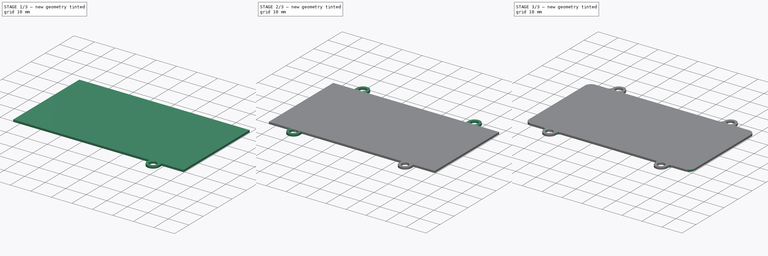
[diagram: build sequence overview — one tinted view per stage of 3, left to right]
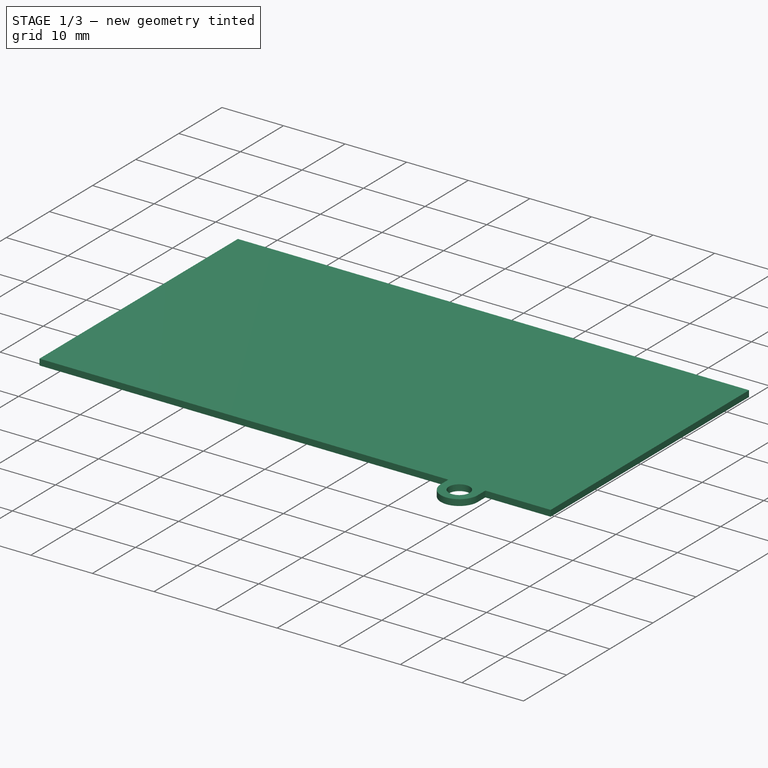
[diagram: stage 1 of 3 — iso view after this stage's code; geometry added in this stage tinted green]
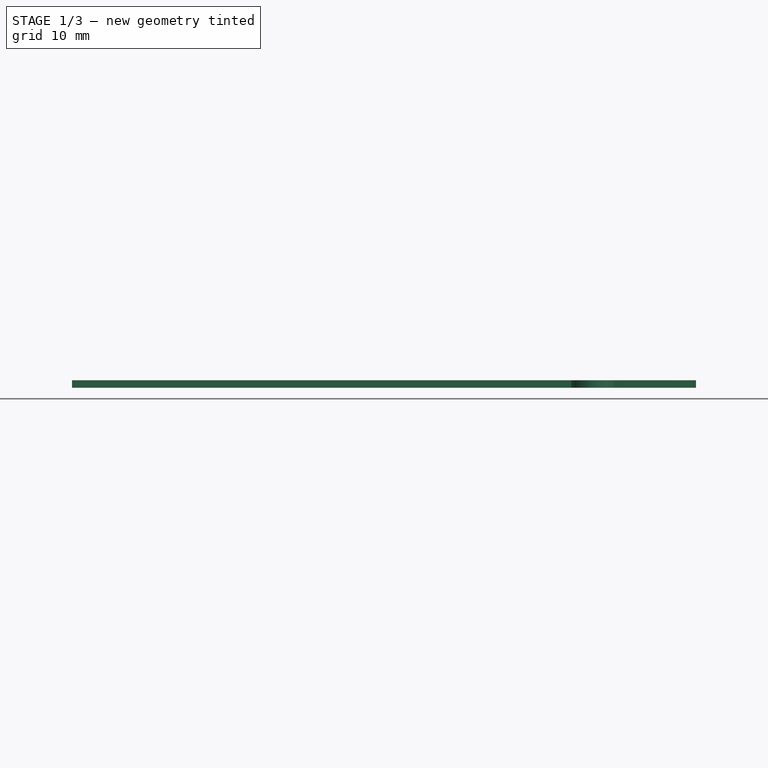
[diagram: stage 1 of 3 — front view after this stage's code; geometry added in this stage tinted green]
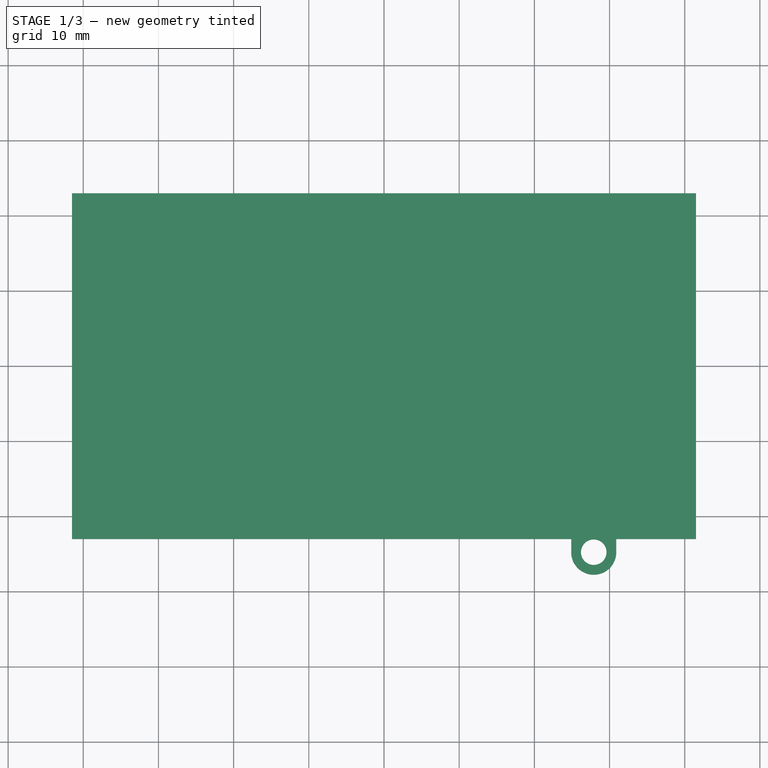
[diagram: stage 1 of 3 — top view after this stage's code; geometry added in this stage tinted green]
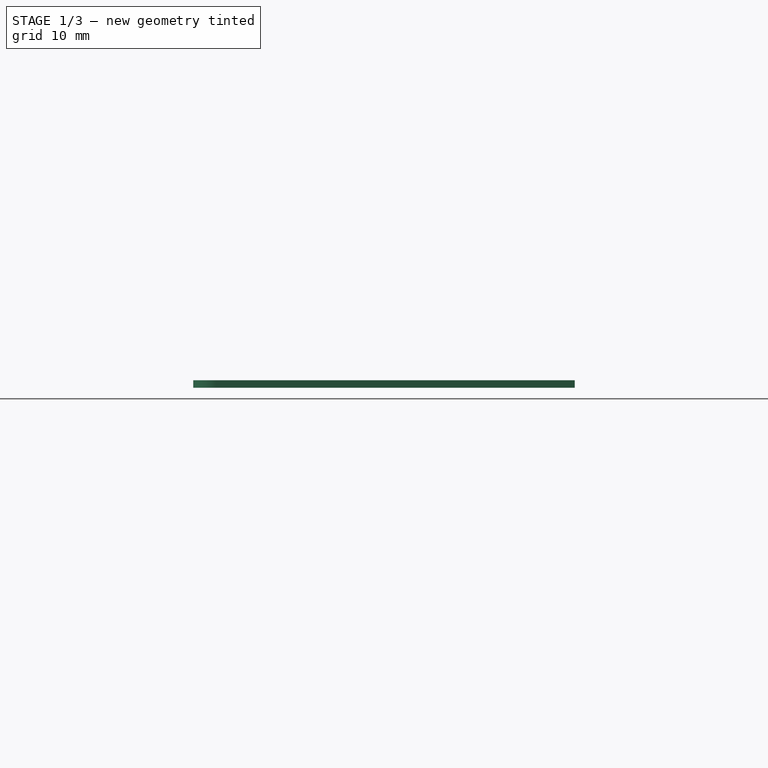
[diagram: stage 1 of 3 — right view after this stage's code; geometry added in this stage tinted green]
FCSTD DOCUMENT  (FreeCAD 0.16R6710 (Git))
Label: BreadboardMount
License: All rights reserved
LicenseURL: http://en.wikipedia.org/wiki/All_rights_reserved
objects: Sketcher::SketchObject×2, PartDesign::Pad×2, PartDesign::Mirrored×2, PartDesign::Fillet×2, PartDesign::MultiTransform×1
note: 11 computed .brp shape members not serialized (recipe doc carries the construction recipe); baked Part::Feature solids carry a one-line shape summary decoded from their .brp

FEATURE [Sketcher::SketchObject] Sketch
  sketch-geometry (4):
    g0: LineSegment StartX=-41.5 StartY=-23 StartZ=0 EndX=41.5 EndY=-23 EndZ=0
    g1: LineSegment StartX=41.5 StartY=-23 StartZ=0 EndX=41.5 EndY=23 EndZ=0
    g2: LineSegment StartX=41.5 StartY=23 StartZ=0 EndX=-41.5 EndY=23 EndZ=0
    g3: LineSegment StartX=-41.5 StartY=23 StartZ=0 EndX=-41.5 EndY=-23 EndZ=0
  constraints (11):
    c: Coincident(g0,g1)
    c: Coincident(g1,g2)
    c: Coincident(g2,g3)
    c: Coincident(g3,g0)
    c: Horizontal(g0)
    c: Horizontal(g2)
    c: Vertical(g1)
    c: Vertical(g3)
    c: Symmetric(g0,g1,g-1)
    c: Distance(g3) = 46
    c: Distance(g2) = 83
FEATURE [PartDesign::Pad] Pad
  Length = 1
  Length2 = 100
  Sketch = -> Sketch
  Type = 0
FEATURE [Sketcher::SketchObject] Sketch001
  Placement = pos=(0,0,1) rot=(0,0,1;0rad)
  Support = -> Pad [Face6]
  sketch-geometry (5):
    g0: Circle CenterX=27.9 CenterY=-24.75 CenterZ=0 NormalX=0 NormalY=0 NormalZ=1 Radius=1.7
    g1: ArcOfCircle CenterX=27.9 CenterY=-24.75 CenterZ=0 NormalX=0 NormalY=0 NormalZ=1 Radius=3 StartAngle=3.14159 EndAngle=6.28319
    g2: LineSegment StartX=24.9 StartY=-24.75 StartZ=0 EndX=24.9 EndY=-14.75 EndZ=0
    g3: LineSegment StartX=24.9 StartY=-14.75 StartZ=0 EndX=30.9 EndY=-14.75 EndZ=0
    g4: LineSegment StartX=30.9 StartY=-14.75 StartZ=0 EndX=30.9 EndY=-24.75 EndZ=0
  constraints (15):
    c: Radius(g0) = 1.7
    c: DistanceX(g0) = 27.9
    c: DistanceY(g0,g-1) = 24.75
    c: Coincident(g1,g0)
    c: Coincident(g1,g2)
    c: Vertical(g2)
    c: Coincident(g2,g3)
    c: Horizontal(g3)
    c: Coincident(g3,g4)
    c: Vertical(g4)
    c: Coincident(g4,g1)
    c: Radius(g1) = 3
    c: Tangent(g1,g2)
    c: Tangent(g1,g4)
    c: Distance(g2) = 10
FEATURE [PartDesign::Pad] Pad001
  Length = 1
  Length2 = 100
  Reversed = true
  Sketch = -> Sketch001
  Type = 0
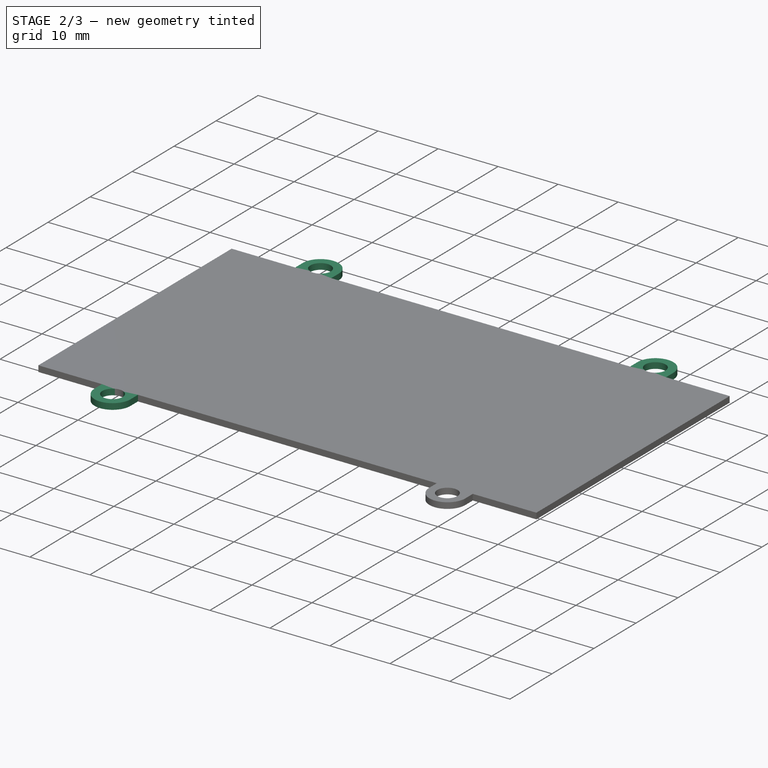
[diagram: stage 2 of 3 — iso view after this stage's code; geometry added in this stage tinted green]
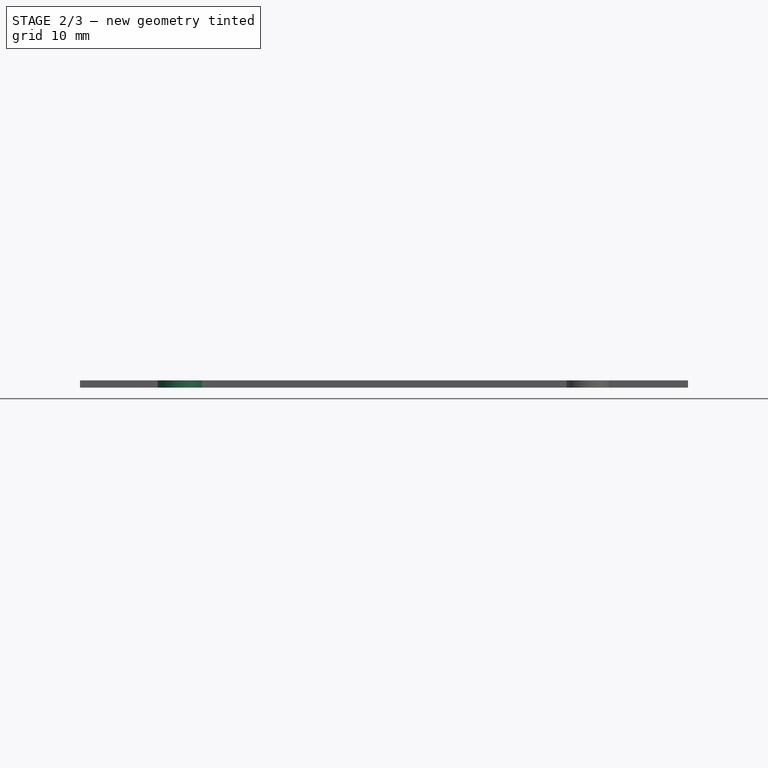
[diagram: stage 2 of 3 — front view after this stage's code; geometry added in this stage tinted green]
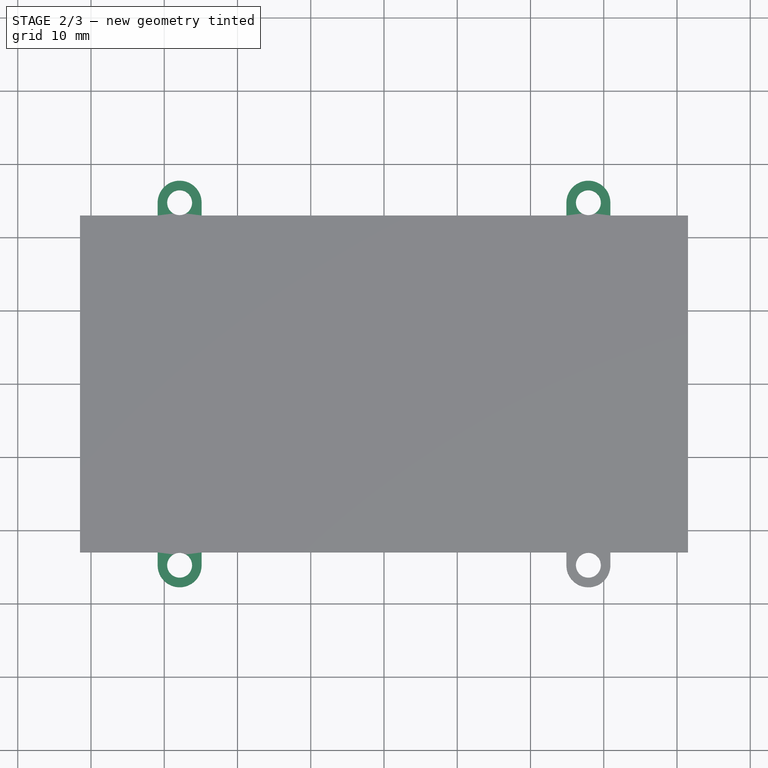
[diagram: stage 2 of 3 — top view after this stage's code; geometry added in this stage tinted green]
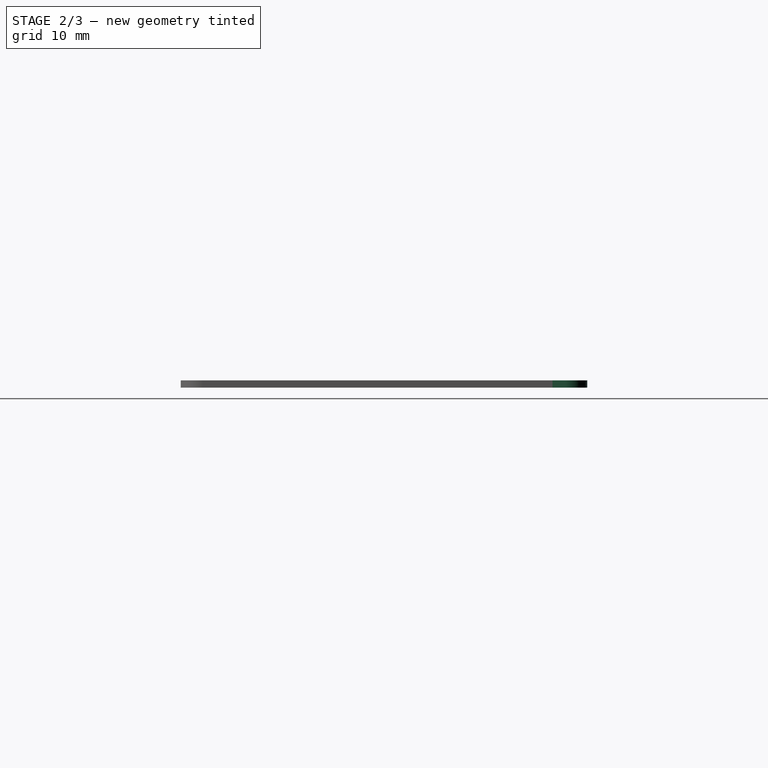
[diagram: stage 2 of 3 — right view after this stage's code; geometry added in this stage tinted green]
FEATURE [PartDesign::Mirrored] Mirrored
  MirrorPlane = -> Sketch001 [H_Axis]
FEATURE [PartDesign::Mirrored] Mirrored001
  MirrorPlane = -> Sketch001 [V_Axis]
FEATURE [PartDesign::MultiTransform] MultiTransform
  Originals = -> [Pad001]
  Transformations = -> [Mirrored,Mirrored001]
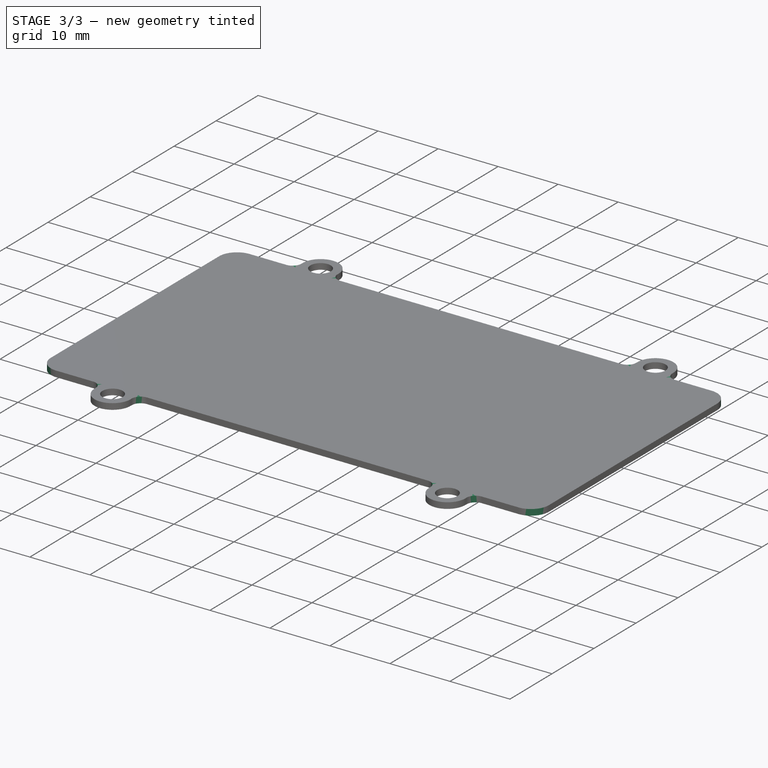
[diagram: stage 3 of 3 — iso view after this stage's code; geometry added in this stage tinted green]
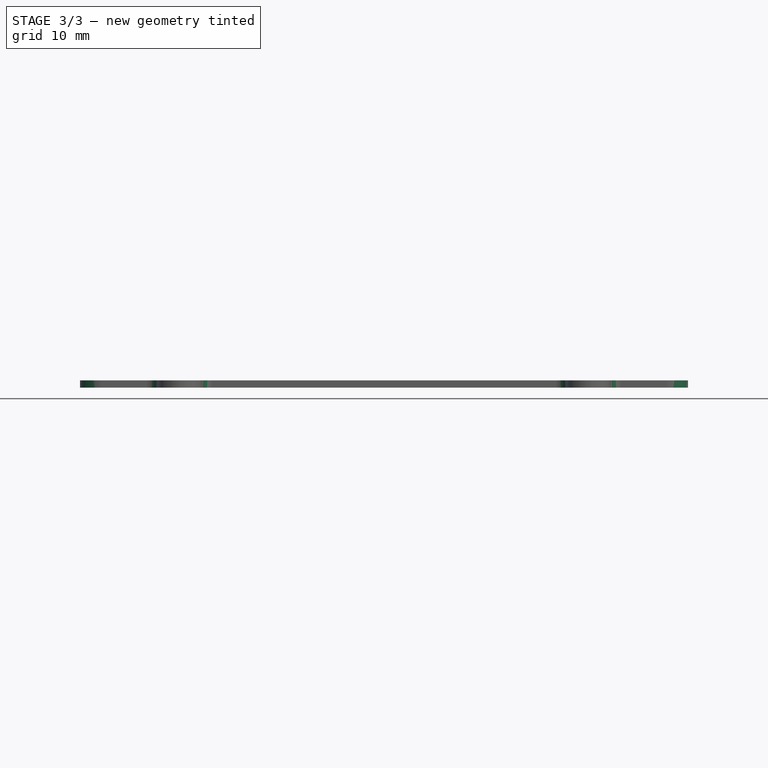
[diagram: stage 3 of 3 — front view after this stage's code; geometry added in this stage tinted green]
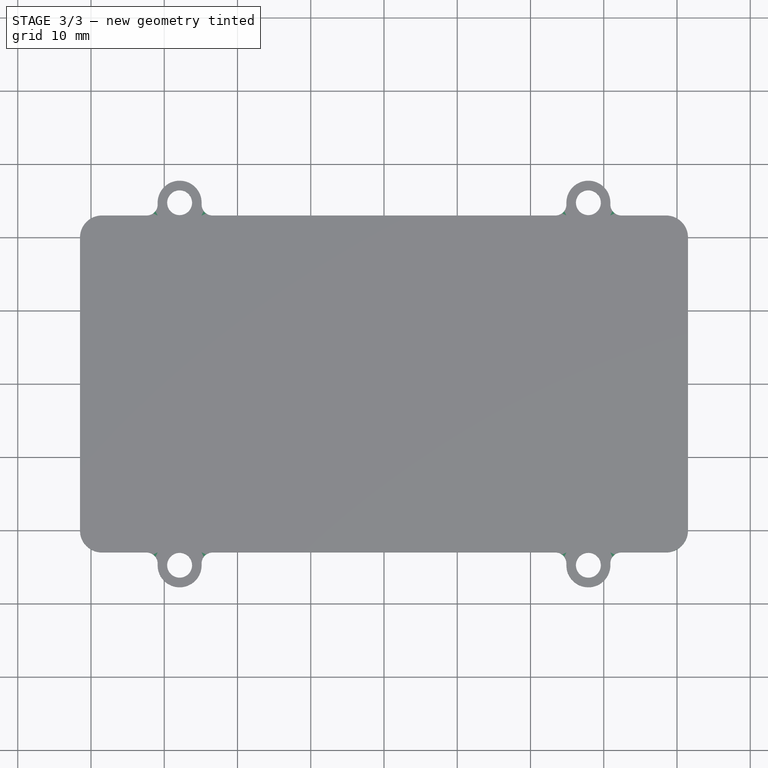
[diagram: stage 3 of 3 — top view after this stage's code; geometry added in this stage tinted green]
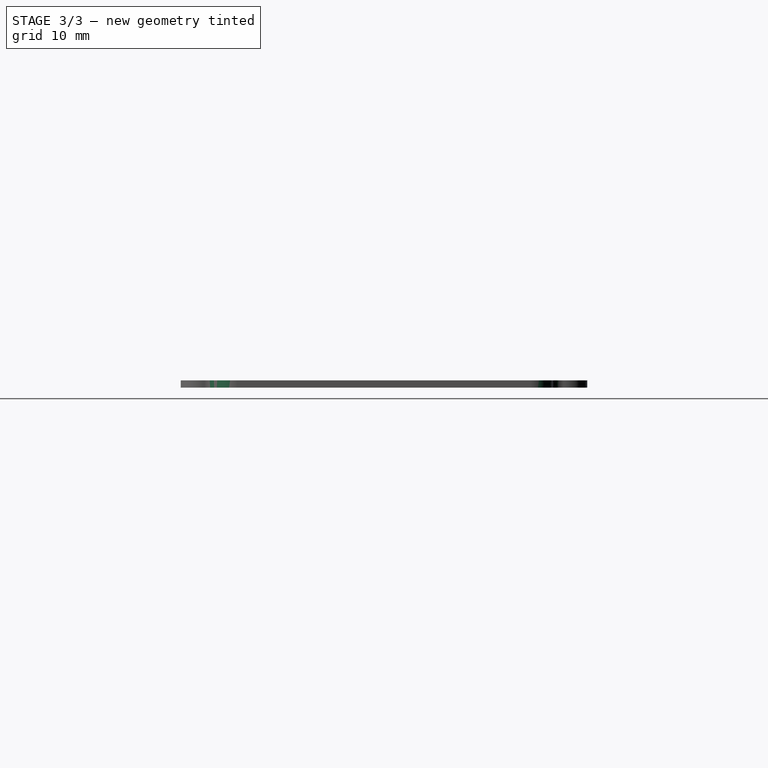
[diagram: stage 3 of 3 — right view after this stage's code; geometry added in this stage tinted green]
FEATURE [PartDesign::Fillet] Fillet
  Base = -> MultiTransform [Edge2,Edge1,Edge55,Edge57]
  Radius = 3
FEATURE [PartDesign::Fillet] Fillet001
  Base = -> Fillet [Edge53,Edge57,Edge56,Edge63,Edge68,Edge61,Edge60,Edge55]
  Radius = 1.5
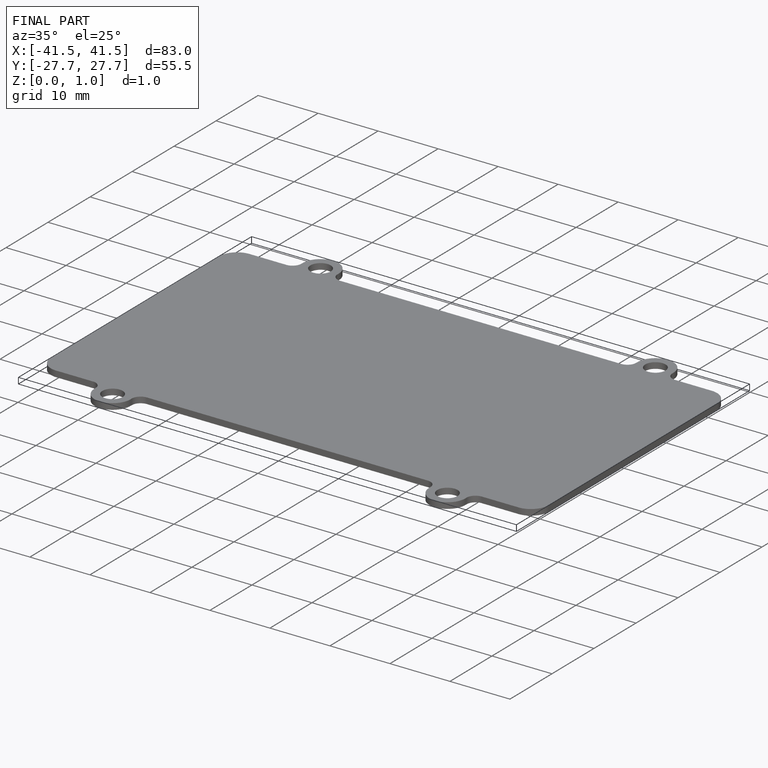
[diagram: finished part — iso view with bounding-box wireframe]
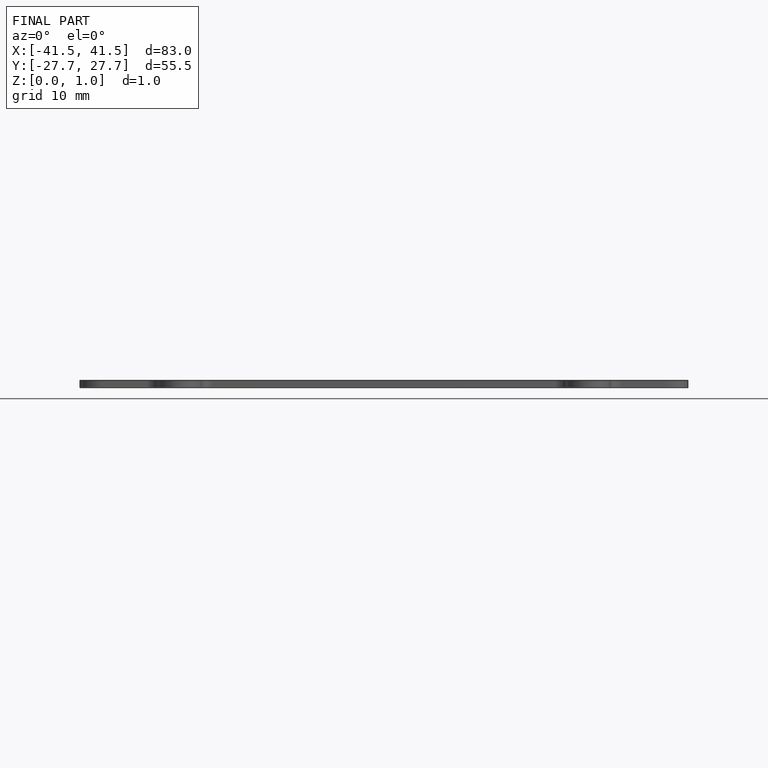
[diagram: finished part — front view with bounding-box wireframe]
